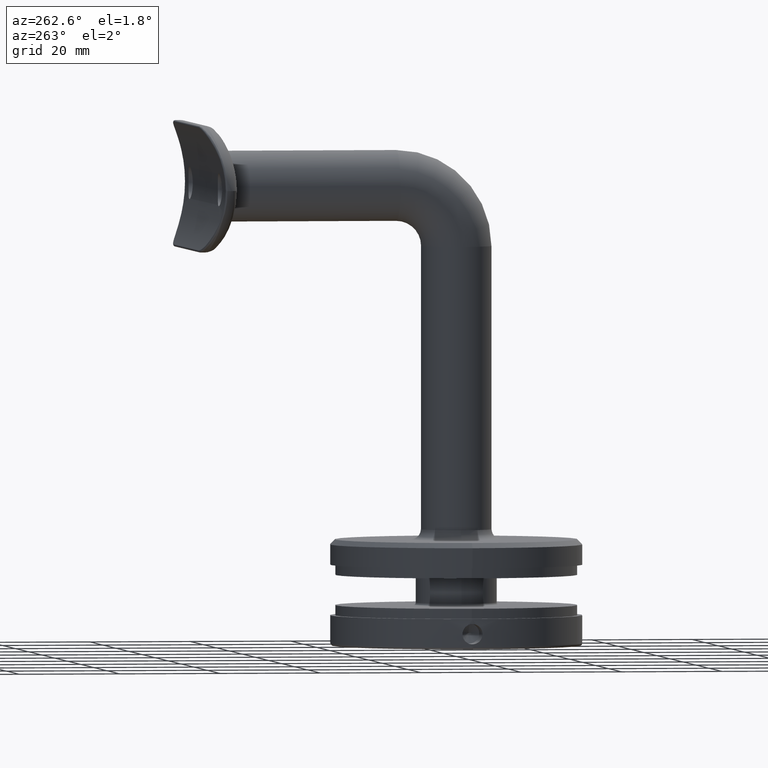
[diagram: clean part render]
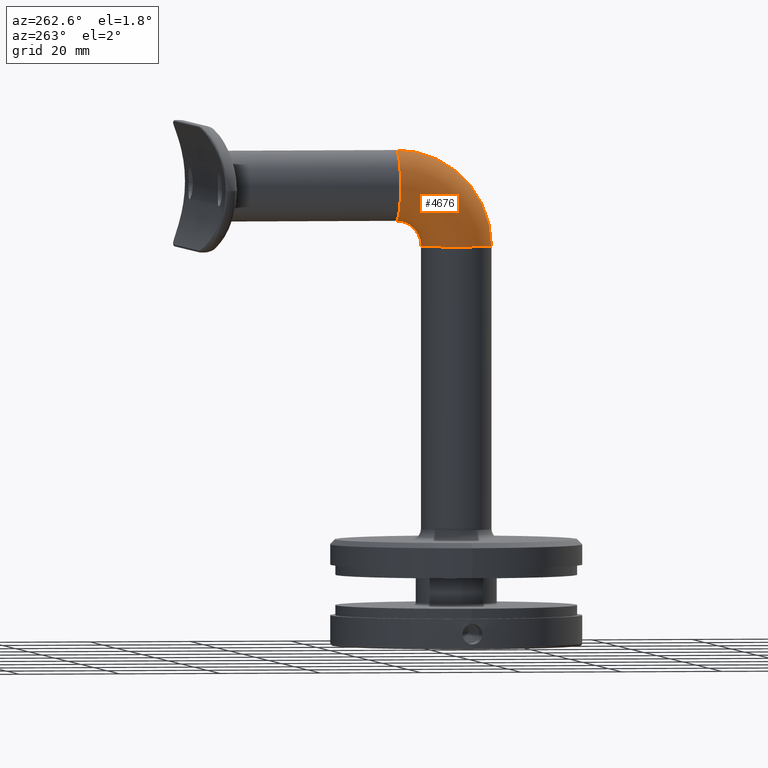
[diagram: same view with one face highlighted and labeled with its STEP entity id]
A machine part, auxiliary view. The second image highlights one B-rep face of the part: STEP entity #4676.
In plain terms, the highlighted toroidal blend (fillet) surface has major radius 12 mm and minor (blend) radius 7 mm.
Its self-contained STEP definition (entity closure, byte-faithful):
#61 = VERTEX_POINT ( 'NONE', #10195 ) ;
#690 = AXIS2_PLACEMENT_3D ( 'NONE', #9886, #1164, #21922 ) ;
#1164 = DIRECTION ( 'NONE',  ( 0.000000000000000000, 0.000000000000000000, 1.000000000000000000 ) ) ;
#1385 = VERTEX_POINT ( 'NONE', #9621 ) ;
#1828 = DIRECTION ( 'NONE',  ( -1.000000000000000000, -0.000000000000000000, 0.000000000000000000 ) ) ;
#2579 = DIRECTION ( 'NONE',  ( -1.000000000000000000, -0.000000000000000000, 0.000000000000000000 ) ) ;
#3491 = DIRECTION ( 'NONE',  ( 0.000000000000000000, 0.000000000000000000, 1.000000000000000000 ) ) ;
#4393 = AXIS2_PLACEMENT_3D ( 'NONE', #17449, #5429, #3491 ) ;
#4676 = ADVANCED_FACE ( 'NONE', ( #18022 ), #5778, .T. ) ;
#5429 = DIRECTION ( 'NONE',  ( -1.000000000000000000, -0.000000000000000000, 0.000000000000000000 ) ) ;
#5495 = VERTEX_POINT ( 'NONE', #9975 ) ;
#5778 = TOROIDAL_SURFACE ( 'NONE', #5903, 11.99999999999999645, 7.000000000000000000 ) ;
#5903 = AXIS2_PLACEMENT_3D ( 'NONE', #18254, #2579, #12863 ) ;
#6151 = ORIENTED_EDGE ( 'NONE', *, *, #19006, .T. ) ;
#6372 = AXIS2_PLACEMENT_3D ( 'NONE', #19155, #1828, #20993 ) ;
#7427 = EDGE_LOOP ( 'NONE', ( #6151, #22315, #20918, #10336 ) ) ;
#7743 = CARTESIAN_POINT ( 'NONE',  ( 0.000000000000000000, 11.99999999999999112, 75.00000000000000000 ) ) ;
#7804 = EDGE_CURVE ( 'NONE', #8930, #61, #11104, .T. ) ;
#8752 = CARTESIAN_POINT ( 'NONE',  ( 8.572527594031465301E-16, 11.99999999999999112, 67.99999999999998579 ) ) ;
#8930 = VERTEX_POINT ( 'NONE', #8752 ) ;
#9621 = CARTESIAN_POINT ( 'NONE',  ( 0.000000000000000000, -7.000000000000007994, 62.99999999999991473 ) ) ;
#9792 = EDGE_CURVE ( 'NONE', #5495, #8930, #14135, .T. ) ;
#9886 = CARTESIAN_POINT ( 'NONE',  ( 0.000000000000000000, -7.715274834628312756E-15, 62.99999999999991473 ) ) ;
#9975 = CARTESIAN_POINT ( 'NONE',  ( 8.572527594031473190E-16, 6.999999999999992006, 62.99999999999991473 ) ) ;
#10195 = CARTESIAN_POINT ( 'NONE',  ( 0.000000000000000000, 11.99999999999999112, 82.00000000000000000 ) ) ;
#10336 = ORIENTED_EDGE ( 'NONE', *, *, #9792, .F. ) ;
#11104 = CIRCLE ( 'NONE', #20695, 7.000000000000000000 ) ;
#12863 = DIRECTION ( 'NONE',  ( 0.000000000000000000, 0.000000000000000000, 1.000000000000000000 ) ) ;
#13950 = CIRCLE ( 'NONE', #690, 7.000000000000000000 ) ;
#14135 = CIRCLE ( 'NONE', #6372, 4.999999999999990230 ) ;
#17449 = CARTESIAN_POINT ( 'NONE',  ( 0.000000000000000000, 11.99999999999999112, 63.00000000000000000 ) ) ;
#18022 = FACE_OUTER_BOUND ( 'NONE', #7427, .T. ) ;
#18088 = DIRECTION ( 'NONE',  ( 1.000000000000000000, 0.000000000000000000, 0.000000000000000000 ) ) ;
#18254 = CARTESIAN_POINT ( 'NONE',  ( 0.000000000000000000, 11.99999999999999112, 63.00000000000000000 ) ) ;
#19006 = EDGE_CURVE ( 'NONE', #5495, #1385, #13950, .T. ) ;
#19155 = CARTESIAN_POINT ( 'NONE',  ( 8.572527594031473190E-16, 11.99999999999999112, 63.00000000000000000 ) ) ;
#19431 = CIRCLE ( 'NONE', #4393, 18.99999999999998934 ) ;
#19670 = EDGE_CURVE ( 'NONE', #1385, #61, #19431, .T. ) ;
#19930 = DIRECTION ( 'NONE',  ( 0.000000000000000000, 1.000000000000000000, -1.224646799147352961E-16 ) ) ;
#20695 = AXIS2_PLACEMENT_3D ( 'NONE', #7743, #19930, #18088 ) ;
#20918 = ORIENTED_EDGE ( 'NONE', *, *, #7804, .F. ) ;
#20993 = DIRECTION ( 'NONE',  ( 0.000000000000000000, 0.000000000000000000, 1.000000000000000000 ) ) ;
#21922 = DIRECTION ( 'NONE',  ( 1.000000000000000000, 0.000000000000000000, 0.000000000000000000 ) ) ;
#22315 = ORIENTED_EDGE ( 'NONE', *, *, #19670, .T. ) ;